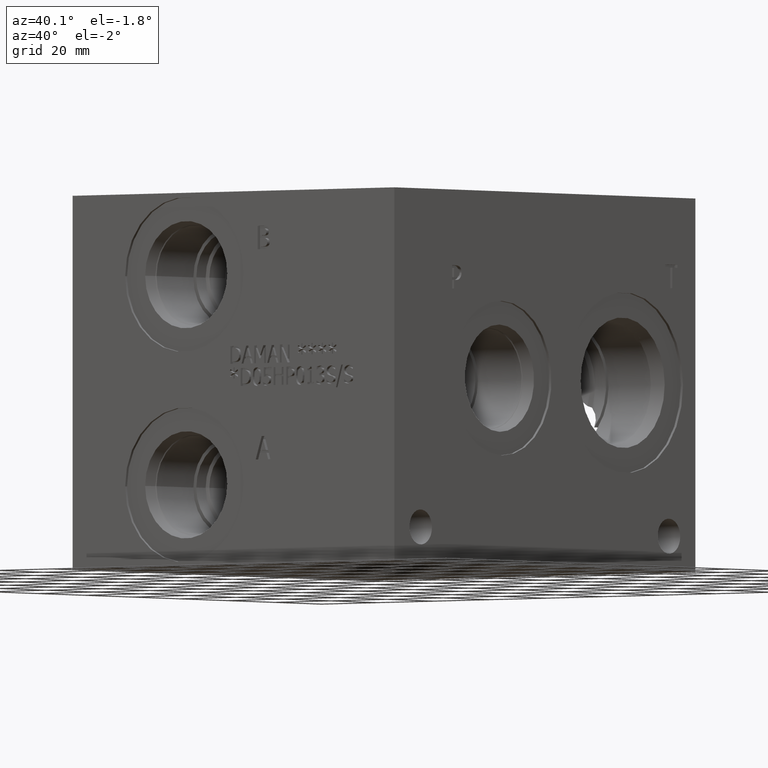
[diagram: clean part render]
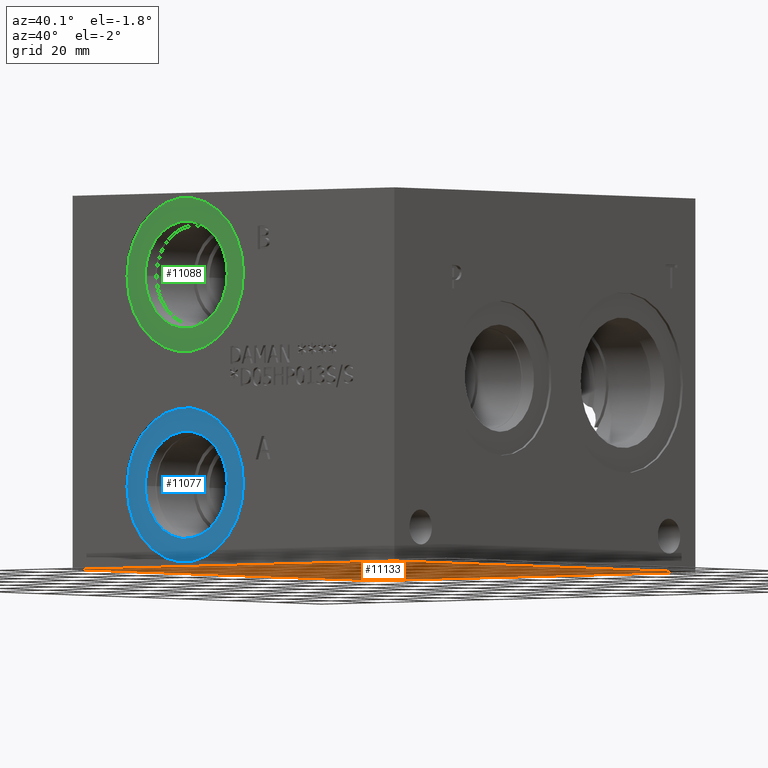
[diagram: same view with three faces highlighted in distinct colors, each labeled with its STEP entity id]
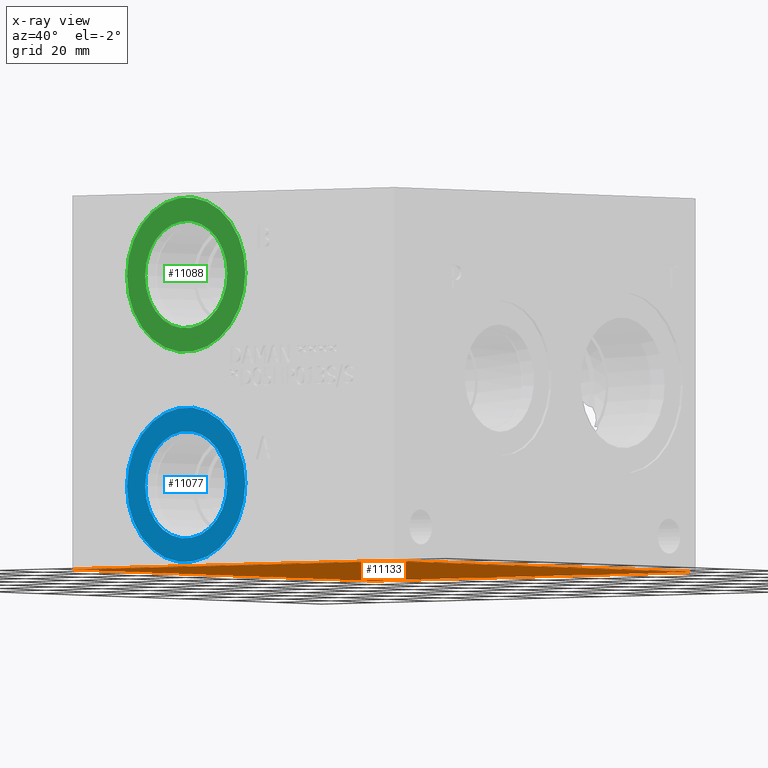
[diagram: x-ray of the same camera — body ghosted, the three highlighted faces saturated]
A machine part, auxiliary view with three faces highlighted in distinct colors.
The next image is the same camera in x-ray (body ghosted, the three faces saturated) — at least one of them is partly hidden behind the body in this view.
Their STEP definitions:

[orange] entity #11133 — the highlighted planar face has unit normal (0, 0, 1).
#740=PLANE('',#11792);
#1309=FACE_OUTER_BOUND('',#1958,.T.);
#1958=EDGE_LOOP('',(#9990,#9991,#9992,#9993));
#1991=LINE('',#14315,#3016);
#2051=LINE('',#14590,#3076);
#2427=LINE('',#17155,#3452);
#2982=LINE('',#19236,#4007);
#3016=VECTOR('',#11847,10.);
#3076=VECTOR('',#11961,10.);
#3452=VECTOR('',#12559,10.);
#4007=VECTOR('',#14100,10.);
#4339=VERTEX_POINT('',#14313);
#4340=VERTEX_POINT('',#14314);
#4399=VERTEX_POINT('',#14588);
#4400=VERTEX_POINT('',#14589);
#5410=EDGE_CURVE('',#4339,#4340,#1991,.T.);
#5494=EDGE_CURVE('',#4399,#4400,#2051,.T.);
#6088=EDGE_CURVE('',#4400,#4339,#2427,.T.);
#6904=EDGE_CURVE('',#4340,#4399,#2982,.T.);
#9990=ORIENTED_EDGE('',*,*,#6088,.F.);
#9991=ORIENTED_EDGE('',*,*,#5494,.F.);
#9992=ORIENTED_EDGE('',*,*,#6904,.F.);
#9993=ORIENTED_EDGE('',*,*,#5410,.F.);
#11133=ADVANCED_FACE('',(#1309),#740,.F.);
#11792=AXIS2_PLACEMENT_3D('',#19241,#14108,#14109);
#11847=DIRECTION('',(0.,1.,0.));
#11961=DIRECTION('',(0.,-1.,0.));
#12559=DIRECTION('',(1.,0.,0.));
#14100=DIRECTION('',(-1.,0.,0.));
#14108=DIRECTION('center_axis',(0.,0.,1.));
#14109=DIRECTION('ref_axis',(1.,0.,0.));
#14313=CARTESIAN_POINT('',(114.3,0.,0.));
#14314=CARTESIAN_POINT('',(114.3,127.,0.));
#14315=CARTESIAN_POINT('',(114.3,0.,0.));
#14588=CARTESIAN_POINT('',(0.,127.,0.));
#14589=CARTESIAN_POINT('',(0.,0.,0.));
#14590=CARTESIAN_POINT('',(0.,127.,0.));
#17155=CARTESIAN_POINT('',(0.,0.,0.));
#19236=CARTESIAN_POINT('',(114.3,127.,0.));
#19241=CARTESIAN_POINT('Origin',(57.15,63.5,0.));

[blue] entity #11077 — the highlighted planar face has unit normal (0, 1, 0).
#244=CIRCLE('',#11645,21.0185);
#245=CIRCLE('',#11646,21.0185);
#246=CIRCLE('',#11648,14.5923);
#247=CIRCLE('',#11649,14.5923);
#396=FACE_BOUND('',#1884,.T.);
#725=PLANE('',#11647);
#1253=FACE_OUTER_BOUND('',#1883,.T.);
#1883=EDGE_LOOP('',(#9685,#9686));
#1884=EDGE_LOOP('',(#9687,#9688));
#5261=VERTEX_POINT('',#18949);
#5262=VERTEX_POINT('',#18951);
#5263=VERTEX_POINT('',#18955);
#5264=VERTEX_POINT('',#18956);
#6772=EDGE_CURVE('',#5261,#5262,#244,.T.);
#6773=EDGE_CURVE('',#5262,#5261,#245,.T.);
#6774=EDGE_CURVE('',#5263,#5264,#246,.T.);
#6775=EDGE_CURVE('',#5264,#5263,#247,.T.);
#9685=ORIENTED_EDGE('',*,*,#6773,.F.);
#9686=ORIENTED_EDGE('',*,*,#6772,.F.);
#9687=ORIENTED_EDGE('',*,*,#6774,.T.);
#9688=ORIENTED_EDGE('',*,*,#6775,.T.);
#11077=ADVANCED_FACE('',(#1253,#396),#725,.F.);
#11645=AXIS2_PLACEMENT_3D('',#18952,#13771,#13772);
#11646=AXIS2_PLACEMENT_3D('',#18953,#13773,#13774);
#11647=AXIS2_PLACEMENT_3D('',#18954,#13775,#13776);
#11648=AXIS2_PLACEMENT_3D('',#18957,#13777,#13778);
#11649=AXIS2_PLACEMENT_3D('',#18958,#13779,#13780);
#13771=DIRECTION('center_axis',(0.,1.,0.));
#13772=DIRECTION('ref_axis',(1.,0.,0.));
#13773=DIRECTION('center_axis',(0.,1.,0.));
#13774=DIRECTION('ref_axis',(1.,0.,0.));
#13775=DIRECTION('center_axis',(0.,1.,0.));
#13776=DIRECTION('ref_axis',(0.,0.,1.));
#13777=DIRECTION('center_axis',(0.,1.,0.));
#13778=DIRECTION('ref_axis',(1.,0.,0.));
#13779=DIRECTION('center_axis',(0.,1.,0.));
#13780=DIRECTION('ref_axis',(1.,0.,0.));
#18949=CARTESIAN_POINT('',(18.6563,0.7874,22.225));
#18951=CARTESIAN_POINT('',(60.6933,0.7874,22.225));
#18952=CARTESIAN_POINT('Origin',(39.6748,0.7874,22.225));
#18953=CARTESIAN_POINT('Origin',(39.6748,0.7874,22.225));
#18954=CARTESIAN_POINT('Origin',(54.2671,0.7874,22.225));
#18955=CARTESIAN_POINT('',(54.2671,0.7874,22.225));
#18956=CARTESIAN_POINT('',(25.0825,0.787399999999999,22.225));
#18957=CARTESIAN_POINT('Origin',(39.6748,0.7874,22.225));
#18958=CARTESIAN_POINT('Origin',(39.6748,0.7874,22.225));

[green] entity #11088 — the highlighted planar face has unit normal (0, 1, 0).
#261=CIRCLE('',#11673,21.0185);
#262=CIRCLE('',#11674,21.0185);
#263=CIRCLE('',#11676,14.5923);
#264=CIRCLE('',#11677,14.5923);
#398=FACE_BOUND('',#1897,.T.);
#727=PLANE('',#11675);
#1264=FACE_OUTER_BOUND('',#1896,.T.);
#1896=EDGE_LOOP('',(#9739,#9740));
#1897=EDGE_LOOP('',(#9741,#9742));
#5279=VERTEX_POINT('',#19004);
#5280=VERTEX_POINT('',#19006);
#5281=VERTEX_POINT('',#19010);
#5282=VERTEX_POINT('',#19011);
#6798=EDGE_CURVE('',#5279,#5280,#261,.T.);
#6799=EDGE_CURVE('',#5280,#5279,#262,.T.);
#6800=EDGE_CURVE('',#5281,#5282,#263,.T.);
#6801=EDGE_CURVE('',#5282,#5281,#264,.T.);
#9739=ORIENTED_EDGE('',*,*,#6799,.F.);
#9740=ORIENTED_EDGE('',*,*,#6798,.F.);
#9741=ORIENTED_EDGE('',*,*,#6800,.T.);
#9742=ORIENTED_EDGE('',*,*,#6801,.T.);
#11088=ADVANCED_FACE('',(#1264,#398),#727,.F.);
#11673=AXIS2_PLACEMENT_3D('',#19007,#13836,#13837);
#11674=AXIS2_PLACEMENT_3D('',#19008,#13838,#13839);
#11675=AXIS2_PLACEMENT_3D('',#19009,#13840,#13841);
#11676=AXIS2_PLACEMENT_3D('',#19012,#13842,#13843);
#11677=AXIS2_PLACEMENT_3D('',#19013,#13844,#13845);
#13836=DIRECTION('center_axis',(0.,1.,0.));
#13837=DIRECTION('ref_axis',(1.,0.,0.));
#13838=DIRECTION('center_axis',(0.,1.,0.));
#13839=DIRECTION('ref_axis',(1.,0.,0.));
#13840=DIRECTION('center_axis',(0.,1.,0.));
#13841=DIRECTION('ref_axis',(0.,0.,1.));
#13842=DIRECTION('center_axis',(0.,1.,0.));
#13843=DIRECTION('ref_axis',(1.,0.,0.));
#13844=DIRECTION('center_axis',(0.,1.,0.));
#13845=DIRECTION('ref_axis',(1.,0.,0.));
#19004=CARTESIAN_POINT('',(18.6563,0.7874,79.375));
#19006=CARTESIAN_POINT('',(60.6933,0.7874,79.375));
#19007=CARTESIAN_POINT('Origin',(39.6748,0.7874,79.375));
#19008=CARTESIAN_POINT('Origin',(39.6748,0.7874,79.375));
#19009=CARTESIAN_POINT('Origin',(54.2671,0.7874,79.375));
#19010=CARTESIAN_POINT('',(54.2671,0.7874,79.375));
#19011=CARTESIAN_POINT('',(25.0825,0.787399999999999,79.375));
#19012=CARTESIAN_POINT('Origin',(39.6748,0.7874,79.375));
#19013=CARTESIAN_POINT('Origin',(39.6748,0.7874,79.375));